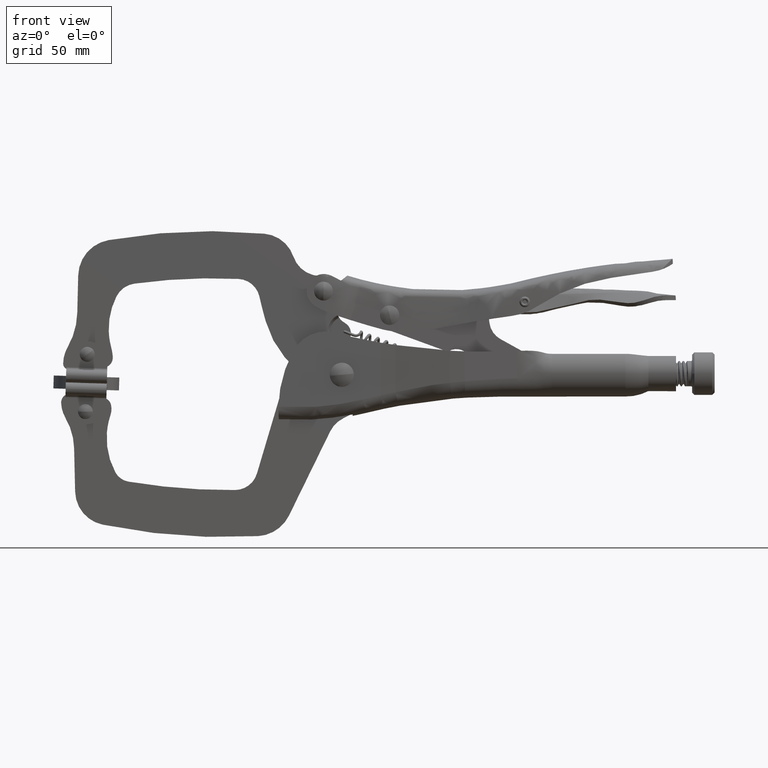
[diagram: clean part render]
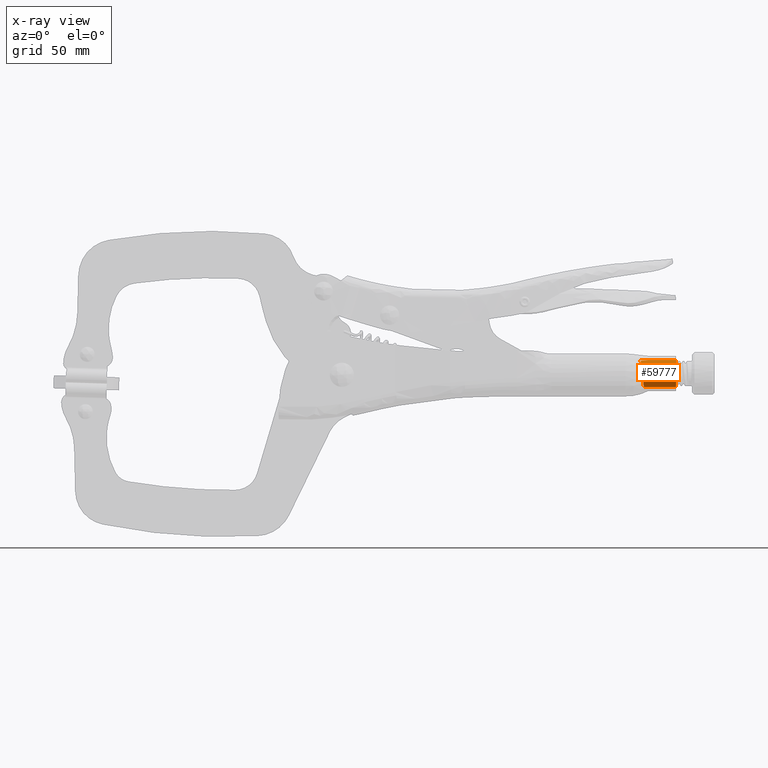
[diagram: x-ray — body ghosted, one internal face saturated and labeled with its STEP entity id]
A machine part, front view, then the same camera in x-ray: the body is ghosted and one INTERNAL B-rep face — a face not visible from any outside direction — is saturated and labeled: STEP entity #59777.
In plain terms, the highlighted cylindrical surface (edge-blend (fillet) strip) has radius 5.907 mm, axis along (1, 0, 0).
Its self-contained STEP definition (entity closure, byte-faithful):
#1097 = B_SPLINE_CURVE_WITH_KNOTS ( 'NONE', 3,
 ( #14386, #14317, #14182, #14104, #14035, #13908 ),
 .UNSPECIFIED., .F., .F.,
 ( 4, 2, 4 ),
 ( 1.796506968986670200E-017, 0.001973638635757511100, 0.003947277271515004800 ),
 .UNSPECIFIED. ) ;
#1741 = CARTESIAN_POINT ( 'NONE',  ( 90.02204641913094500, 2.613187728298986400, 7.452981241093536500 ) ) ;
#1960 = CARTESIAN_POINT ( 'NONE',  ( 75.28960845581849500, -3.093745789563926000, 2.960497267828054100 ) ) ;
#2170 = CARTESIAN_POINT ( 'NONE',  ( 75.95844624339417800, -0.9060809146491278800, -3.181859151555344900 ) ) ;
#2404 = CARTESIAN_POINT ( 'NONE',  ( 90.02204641913094500, 2.651795487264938500, 1.546120289797690900 ) ) ;
#5165 = EDGE_CURVE ( 'NONE', #11950, #12966, #25955, .T. ) ;
#5994 = AXIS2_PLACEMENT_3D ( 'NONE', #2404, #37046, #7386 ) ;
#6256 = AXIS2_PLACEMENT_3D ( 'NONE', #7086, #12125, #31776 ) ;
#6701 = CARTESIAN_POINT ( 'NONE',  ( 74.62890952750497300, 0.3554154150204844600, 6.999583324300346000 ) ) ;
#6918 = CARTESIAN_POINT ( 'NONE',  ( 75.41761345639359600, -3.251953110431942600, 1.940434278793111900 ) ) ;
#7086 = CARTESIAN_POINT ( 'NONE',  ( 67.02204641913095900, 2.651795487264938500, 1.546120289797690900 ) ) ;
#7145 = CARTESIAN_POINT ( 'NONE',  ( 76.00608230523805300, -0.02900126625359403900, -3.728813194460310200 ) ) ;
#7386 = DIRECTION ( 'NONE',  ( 0.0000000000000000000, 0.0000000000000000000, -1.000000000000000000 ) ) ;
#11746 = CARTESIAN_POINT ( 'NONE',  ( 74.73705145684626000, -0.5541855366961452300, 6.519210970889882400 ) ) ;
#11950 = VERTEX_POINT ( 'NONE', #57561 ) ;
#11968 = CARTESIAN_POINT ( 'NONE',  ( 75.54121939486469700, -3.230869480716163500, 0.9088783769497478200 ) ) ;
#12125 = DIRECTION ( 'NONE',  ( 1.000000000000000000, -0.0000000000000000000, -0.0000000000000000000 ) ) ;
#12179 = FACE_OUTER_BOUND ( 'NONE', #29241, .T. ) ;
#12187 = CARTESIAN_POINT ( 'NONE',  ( 76.04008910832416700, 0.9388456449310117500, -4.117629380051703900 ) ) ;
#12966 = VERTEX_POINT ( 'NONE', #24348 ) ;
#13478 = ORIENTED_EDGE ( 'NONE', *, *, #40366, .F. ) ;
#13557 = EDGE_CURVE ( 'NONE', #23595, #19798, #1097, .T. ) ;
#13908 = CARTESIAN_POINT ( 'NONE',  ( 74.59514467758757000, 0.6835553104736161700, 7.115548219438258200 ) ) ;
#14035 = CARTESIAN_POINT ( 'NONE',  ( 75.20590009363331800, 0.9294622478718169700, 7.202451923023852800 ) ) ;
#14104 = CARTESIAN_POINT ( 'NONE',  ( 75.79038794562997300, 1.222389015439410100, 7.287237791235190400 ) ) ;
#14182 = CARTESIAN_POINT ( 'NONE',  ( 76.92485700890570400, 1.877427829151592700, 7.411611552861401700 ) ) ;
#14317 = CARTESIAN_POINT ( 'NONE',  ( 77.47505182593504000, 2.239276310176079800, 7.450537323414662800 ) ) ;
#14386 = CARTESIAN_POINT ( 'NONE',  ( 78.02204641913095900, 2.613187728298986400, 7.452981241093534800 ) ) ;
#15335 = ORIENTED_EDGE ( 'NONE', *, *, #30436, .F. ) ;
#15858 = CARTESIAN_POINT ( 'NONE',  ( 78.02204641913095900, 2.613187728298986400, 7.452981241093534800 ) ) ;
#16767 = CARTESIAN_POINT ( 'NONE',  ( 74.85702446130649400, -1.373710343393635100, 5.882940023739040600 ) ) ;
#16988 = CARTESIAN_POINT ( 'NONE',  ( 75.65338468534507400, -3.030245994431934400, -0.1045512170782734900 ) ) ;
#17199 = CARTESIAN_POINT ( 'NONE',  ( 76.05724855910206400, 1.952247326407858800, -4.329481653601374300 ) ) ;
#17578 = CARTESIAN_POINT ( 'NONE',  ( 74.59514467758757000, 0.6835553104736161700, 7.115548219438258200 ) ) ;
#18045 = DIRECTION ( 'NONE',  ( -1.000000000000000000, -0.0000000000000000000, -0.0000000000000000000 ) ) ;
#19798 = VERTEX_POINT ( 'NONE', #17578 ) ;
#21657 = ORIENTED_EDGE ( 'NONE', *, *, #33751, .F. ) ;
#21672 = CARTESIAN_POINT ( 'NONE',  ( 74.98157801720232400, -2.062568005730001100, 5.121641869160657600 ) ) ;
#21892 = CARTESIAN_POINT ( 'NONE',  ( 75.75599623444736600, -2.655837717920096700, -1.069434382374881300 ) ) ;
#22118 = CARTESIAN_POINT ( 'NONE',  ( 76.06063018943248700, 2.651795487269868800, -4.360866831992573200 ) ) ;
#23595 = VERTEX_POINT ( 'NONE', #15858 ) ;
#24348 = CARTESIAN_POINT ( 'NONE',  ( 90.02204641913094500, 2.651795487264938500, -4.360866831992573200 ) ) ;
#25955 = LINE ( 'NONE', #45507, #49085 ) ;
#26657 = CARTESIAN_POINT ( 'NONE',  ( 75.11356792143584500, -2.614204260058150500, 4.244497260597511500 ) ) ;
#26686 = VECTOR ( 'NONE', #18045, 1000.000000000000000 ) ;
#26875 = CARTESIAN_POINT ( 'NONE',  ( 75.84304728835746800, -2.119077952911248500, -1.953844742890806800 ) ) ;
#27463 = B_SPLINE_CURVE_WITH_KNOTS ( 'NONE', 3,
 ( #36376, #6701, #41335, #11746, #46283, #16767, #51204, #21672, #56150, #26657, #61069, #31619, #1960, #36594, #6918, #41554, #11968, #46506, #16988, #51432, #21892, #56371, #26875, #61292, #31832, #2170, #36815, #7145, #41767, #12187, #46717, #17199, #51643, #22118 ),
 .UNSPECIFIED., .F., .F.,
 ( 4, 2, 2, 2, 2, 2, 2, 2, 2, 2, 2, 2, 2, 2, 2, 2, 4 ),
 ( 4.172417924378869900E-018, 0.001034041538407648600, 0.002068083076815293300, 0.003102124615222938100, 0.004136166153630582400, 0.005170207692038226700, 0.006204249230445871800, 0.007238290768853516100, 0.008272332307261159500, 0.009306373845668803800, 0.01034041538407644800, 0.01137445692248409200, 0.01240849846089173800, 0.01344253999929938300, 0.01447658153770702700, 0.01551062307611467100, 0.01654466461452231600 ),
 .UNSPECIFIED. ) ;
#29241 = EDGE_LOOP ( 'NONE', ( #57557, #13478, #34619, #21657, #15335 ) ) ;
#30436 = EDGE_CURVE ( 'NONE', #12966, #40359, #63643, .T. ) ;
#31619 = CARTESIAN_POINT ( 'NONE',  ( 75.24453750726286200, -3.000893990086800100, 3.294422278226645200 ) ) ;
#31776 = DIRECTION ( 'NONE',  ( 0.0000000000000000000, 0.0000000000000000000, -1.000000000000000000 ) ) ;
#31832 = CARTESIAN_POINT ( 'NONE',  ( 75.91783070718733500, -1.433864151133651000, -2.734026834813174200 ) ) ;
#33751 = EDGE_CURVE ( 'NONE', #40359, #23595, #38276, .T. ) ;
#34619 = ORIENTED_EDGE ( 'NONE', *, *, #13557, .F. ) ;
#34784 = DIRECTION ( 'NONE',  ( 1.000000000000000000, -0.0000000000000000000, -0.0000000000000000000 ) ) ;
#36376 = CARTESIAN_POINT ( 'NONE',  ( 74.59514467758757000, 0.6835553104736161700, 7.115548219438258200 ) ) ;
#36594 = CARTESIAN_POINT ( 'NONE',  ( 75.37617673136898600, -3.219400137610339400, 2.281490083963838300 ) ) ;
#36815 = CARTESIAN_POINT ( 'NONE',  ( 75.97543974019831100, -0.6250235834549980900, -3.380750042856486700 ) ) ;
#37046 = DIRECTION ( 'NONE',  ( -1.000000000000000000, 0.0000000000000000000, 0.0000000000000000000 ) ) ;
#38276 = LINE ( 'NONE', #47574, #26686 ) ;
#40359 = VERTEX_POINT ( 'NONE', #1741 ) ;
#40366 = EDGE_CURVE ( 'NONE', #19798, #11950, #27463, .T. ) ;
#41335 = CARTESIAN_POINT ( 'NONE',  ( 74.66330373232648300, 0.04243951485674536000, 6.856601120911034500 ) ) ;
#41554 = CARTESIAN_POINT ( 'NONE',  ( 75.49998845033472600, -3.257973575094239100, 1.255671230051071100 ) ) ;
#41767 = CARTESIAN_POINT ( 'NONE',  ( 76.01979148791501500, 0.2892054781028015100, -3.878861363044854300 ) ) ;
#45507 = CARTESIAN_POINT ( 'NONE',  ( 67.02204641913095900, 2.651795487264938500, -4.360866831992573200 ) ) ;
#46283 = CARTESIAN_POINT ( 'NONE',  ( 74.77653377444829600, -0.8387234418890675600, 6.324088498418051400 ) ) ;
#46506 = CARTESIAN_POINT ( 'NONE',  ( 75.61781542635601700, -3.116493539216390400, 0.2275354089586514900 ) ) ;
#46717 = CARTESIAN_POINT ( 'NONE',  ( 76.04697255552838400, 1.271474155236864000, -4.207728756447931300 ) ) ;
#47574 = CARTESIAN_POINT ( 'NONE',  ( 90.02204641913094500, 2.613187728298986400, 7.452981241093536500 ) ) ;
#49085 = VECTOR ( 'NONE', #34784, 1000.000000000000000 ) ;
#51204 = CARTESIAN_POINT ( 'NONE',  ( 74.89730209446533100, -1.618186728442916300, 5.642073119862063300 ) ) ;
#51432 = CARTESIAN_POINT ( 'NONE',  ( 75.72235441866278900, -2.800816014769244700, -0.7515610700128218000 ) ) ;
#51643 = CARTESIAN_POINT ( 'NONE',  ( 76.06063018943255800, 2.302137453013456200, -4.360866831992865400 ) ) ;
#56150 = CARTESIAN_POINT ( 'NONE',  ( 75.02582052215001300, -2.263515771862064000, 4.840313186585762000 ) ) ;
#56371 = CARTESIAN_POINT ( 'NONE',  ( 75.81615694974786400, -2.314360958506718200, -1.670925970365062100 ) ) ;
#57557 = ORIENTED_EDGE ( 'NONE', *, *, #5165, .F. ) ;
#57561 = CARTESIAN_POINT ( 'NONE',  ( 76.06063018943248700, 2.651795487269868800, -4.360866831992573200 ) ) ;
#59777 = ADVANCED_FACE ( 'NONE', ( #12179 ), #61490, .F. ) ;
#61069 = CARTESIAN_POINT ( 'NONE',  ( 75.15666662679869600, -2.761358326148762600, 3.935099980467414900 ) ) ;
#61292 = CARTESIAN_POINT ( 'NONE',  ( 75.89380490930568600, -1.680248329159334200, -2.484312067257936600 ) ) ;
#61490 = CYLINDRICAL_SURFACE ( 'NONE', #6256, 5.906987121790264100 ) ;
#63643 = CIRCLE ( 'NONE', #5994, 5.906987121790264100 ) ;